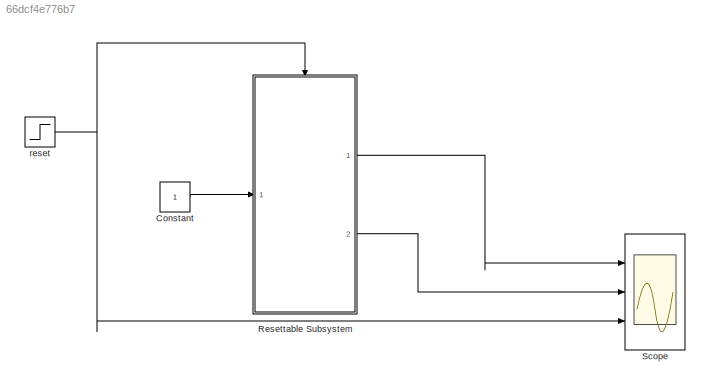
MODEL slx_66dcf4e776b7
KIND model
CONFIG AbsTol = auto
CONFIG FixedStep = auto
CONFIG MaxStep = auto
CONFIG MinStep = auto
CONFIG RelTol = 1e-3
CONFIG SampleTimeConstraint = Unconstrained
CONFIG Solver = ode45
CONFIG SolverMode = SingleTasking
CONFIG SolverName = ode45
CONFIG StartTime = 0.0
CONFIG StopTime = 10.0
BLOCK [Constant] Constant
  SampleTime = .2
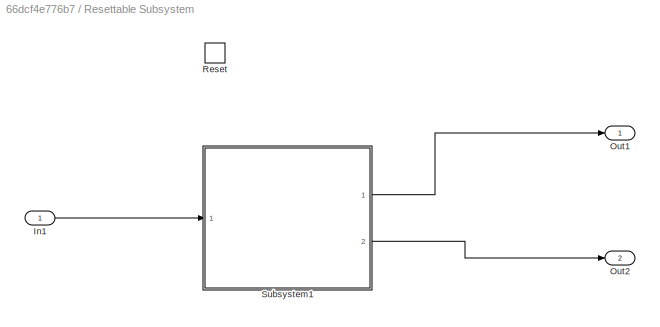
BLOCK [SubSystem] Resettable Subsystem
  Ports = [1, 2, 0, 0, 0, 0, 0, 0, 1]
  RequestExecContextInheritance = off
  TreatAsAtomicUnit = on
  Variant = off
BLOCK [Inport] Resettable Subsystem/In1
  IconDisplay = Port number
BLOCK [Outport] Resettable Subsystem/Out1
  IconDisplay = Port number
BLOCK [Outport] Resettable Subsystem/Out2
  IconDisplay = Port number
  Port = 2
BLOCK [ResetPort] Resettable Subsystem/Reset
  DisableCoverage = on
  ResetTriggerType = level hold
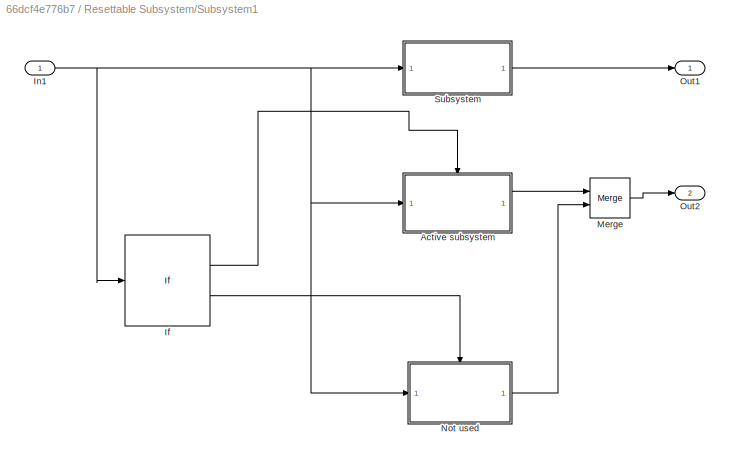
BLOCK [SubSystem] Resettable Subsystem/Subsystem1
  Ports = [1, 2]
  RequestExecContextInheritance = off
  Variant = off
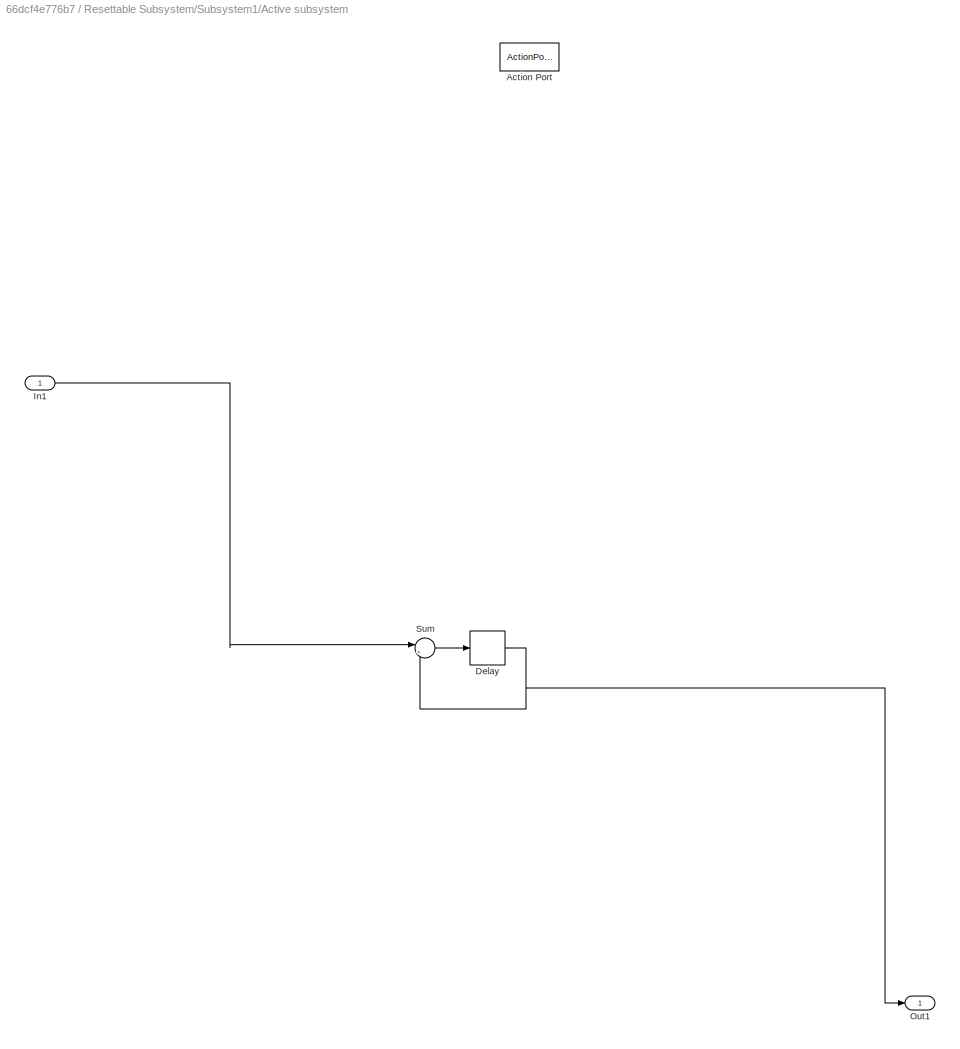
BLOCK [SubSystem] Resettable Subsystem/Subsystem1/Active subsystem
  Ports = [1, 1, 0, 0, 0, 0, 0, 1]
  RequestExecContextInheritance = off
  TreatAsAtomicUnit = on
  Variant = off
BLOCK [ActionPort] Resettable Subsystem/Subsystem1/Active subsystem/Action Port
  ActionType = then
BLOCK [Delay] Resettable Subsystem/Subsystem1/Active subsystem/Delay
  DelayLength = 1
  InputPortMap = u0
  Ports = [1, 1]
BLOCK [Inport] Resettable Subsystem/Subsystem1/Active subsystem/In1
  IconDisplay = Port number
BLOCK [Outport] Resettable Subsystem/Subsystem1/Active subsystem/Out1
  IconDisplay = Port number
BLOCK [Sum] Resettable Subsystem/Subsystem1/Active subsystem/Sum
  IconShape = round
  InputSameDT = off
  Inputs = |++
  OutDataTypeStr = Inherit: Inherit via internal rule
  Ports = [2, 1]
  SaturateOnIntegerOverflow = off
BLOCK [If] Resettable Subsystem/Subsystem1/If
  ElseIfExpressions = u1 == 0
  IfExpression = u1 == 1
  Ports = [1, 2]
  ShowElse = off
BLOCK [Inport] Resettable Subsystem/Subsystem1/In1
  IconDisplay = Port number
BLOCK [Merge] Resettable Subsystem/Subsystem1/Merge
  Ports = [2, 1]
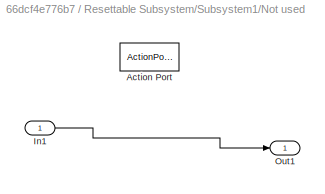
BLOCK [SubSystem] Resettable Subsystem/Subsystem1/Not used
  Ports = [1, 1, 0, 0, 0, 0, 0, 1]
  RequestExecContextInheritance = off
  TreatAsAtomicUnit = on
  Variant = off
BLOCK [ActionPort] Resettable Subsystem/Subsystem1/Not used/Action Port
  ActionType = elseif
BLOCK [Inport] Resettable Subsystem/Subsystem1/Not used/In1
  IconDisplay = Port number
BLOCK [Outport] Resettable Subsystem/Subsystem1/Not used/Out1
  IconDisplay = Port number
BLOCK [Outport] Resettable Subsystem/Subsystem1/Out1
  IconDisplay = Port number
BLOCK [Outport] Resettable Subsystem/Subsystem1/Out2
  IconDisplay = Port number
  Port = 2
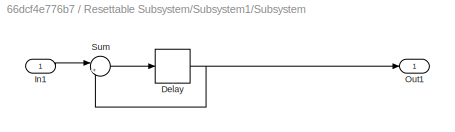
BLOCK [SubSystem] Resettable Subsystem/Subsystem1/Subsystem
  Ports = [1, 1]
  RequestExecContextInheritance = off
  Variant = off
BLOCK [Delay] Resettable Subsystem/Subsystem1/Subsystem/Delay
  DelayLength = 1
  InputPortMap = u0
  Ports = [1, 1]
BLOCK [Inport] Resettable Subsystem/Subsystem1/Subsystem/In1
  IconDisplay = Port number
BLOCK [Outport] Resettable Subsystem/Subsystem1/Subsystem/Out1
  IconDisplay = Port number
BLOCK [Sum] Resettable Subsystem/Subsystem1/Subsystem/Sum
  IconShape = round
  InputSameDT = off
  Inputs = |++
  OutDataTypeStr = Inherit: Inherit via internal rule
  Ports = [2, 1]
  SaturateOnIntegerOverflow = off
BLOCK [Scope] Scope
  DataFormat = StructureWithTime
  Decimation = 1
  Grid = on
  LimitDataPoints = off
  MaxDataPoints = 5000
  NumInputPorts = 3
  Ports = [3]
  SampleInput = off
  SampleTime = -1
  SaveName = ScopeData
  SaveToWorkspace = off
  ShowLegends = off
  TickLabels = OneTimeTick
  TimeRange = auto
  YMax = 27.00000~27.00000~1.125
  YMin = -3.00000~-3.00000~-0.125
  ZoomMode = on
BLOCK [Step] reset
  SampleTime = .2
  Time = 5
LINE Constant:1 -> Resettable Subsystem:1
LINE Resettable Subsystem/In1:1 -> Resettable Subsystem/Subsystem1:1
NET Resettable Subsystem/Subsystem1/Active subsystem/Delay:1 -> Resettable Subsystem/Subsystem1/Active subsystem/Out1:1, Resettable Subsystem/Subsystem1/Active subsystem/Sum:2
LINE Resettable Subsystem/Subsystem1/Active subsystem/In1:1 -> Resettable Subsystem/Subsystem1/Active subsystem/Sum:1
LINE Resettable Subsystem/Subsystem1/Active subsystem/Sum:1 -> Resettable Subsystem/Subsystem1/Active subsystem/Delay:1
LINE Resettable Subsystem/Subsystem1/Active subsystem:1 -> Resettable Subsystem/Subsystem1/Merge:1
LINE Resettable Subsystem/Subsystem1/If:1 -> Resettable Subsystem/Subsystem1/Active subsystem:ifaction
LINE Resettable Subsystem/Subsystem1/If:2 -> Resettable Subsystem/Subsystem1/Not used:ifaction
NET Resettable Subsystem/Subsystem1/In1:1 -> Resettable Subsystem/Subsystem1/Active subsystem:1, Resettable Subsystem/Subsystem1/If:1, Resettable Subsystem/Subsystem1/Not used:1, Resettable Subsystem/Subsystem1/Subsystem:1
LINE Resettable Subsystem/Subsystem1/Merge:1 -> Resettable Subsystem/Subsystem1/Out2:1
LINE Resettable Subsystem/Subsystem1/Not used/In1:1 -> Resettable Subsystem/Subsystem1/Not used/Out1:1
LINE Resettable Subsystem/Subsystem1/Not used:1 -> Resettable Subsystem/Subsystem1/Merge:2
NET Resettable Subsystem/Subsystem1/Subsystem/Delay:1 -> Resettable Subsystem/Subsystem1/Subsystem/Out1:1, Resettable Subsystem/Subsystem1/Subsystem/Sum:2
LINE Resettable Subsystem/Subsystem1/Subsystem/In1:1 -> Resettable Subsystem/Subsystem1/Subsystem/Sum:1
LINE Resettable Subsystem/Subsystem1/Subsystem/Sum:1 -> Resettable Subsystem/Subsystem1/Subsystem/Delay:1
LINE Resettable Subsystem/Subsystem1/Subsystem:1 -> Resettable Subsystem/Subsystem1/Out1:1
LINE Resettable Subsystem/Subsystem1:1 -> Resettable Subsystem/Out1:1
LINE Resettable Subsystem/Subsystem1:2 -> Resettable Subsystem/Out2:1
LINE Resettable Subsystem:1 -> Scope:1
LINE Resettable Subsystem:2 -> Scope:2
NET reset:1 -> Resettable Subsystem:Reset, Scope:3
note: NET lines group one-source signal fan-out (src -> all destinations, sorted); 1:1 wires keep LINE
